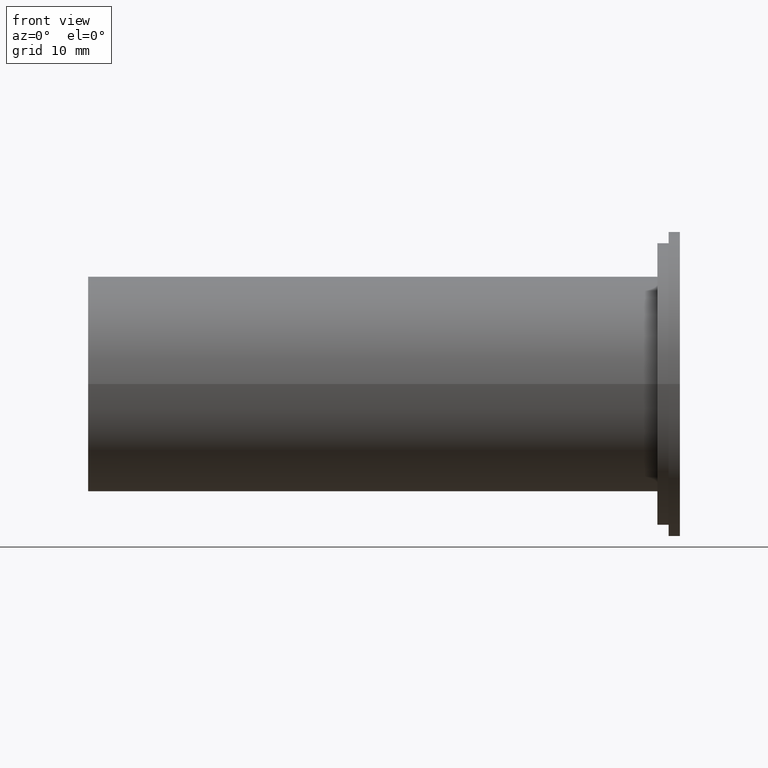
[diagram: clean part render]
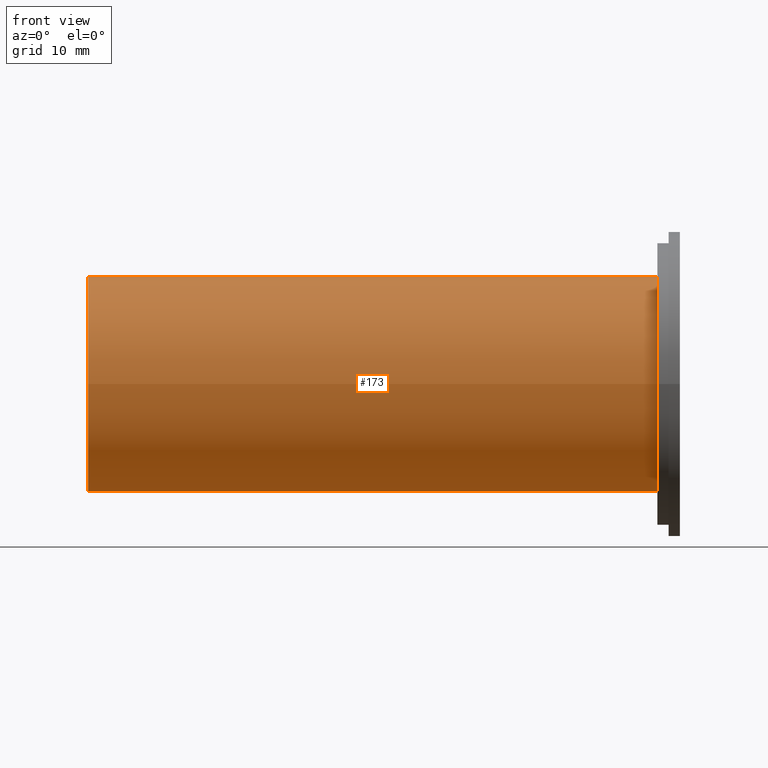
[diagram: same view with one face highlighted and labeled with its STEP entity id]
A machine part, front view. The second image highlights one B-rep face of the part: STEP entity #173.
In plain terms, the highlighted cylindrical surface (bore or boss wall) has radius 9.525 mm, axis along (1, 0, 0).
Its self-contained STEP definition (entity closure, byte-faithful):
#34=FACE_OUTER_BOUND('',#49,.T.);
#49=EDGE_LOOP('',(#148,#149,#150,#151));
#59=LINE('',#325,#67);
#67=VECTOR('',#276,9.525);
#79=CIRCLE('',#218,9.525);
#80=CIRCLE('',#220,9.525);
#92=VERTEX_POINT('',#320);
#93=VERTEX_POINT('',#323);
#111=EDGE_CURVE('',#92,#92,#79,.T.);
#112=EDGE_CURVE('',#93,#93,#80,.T.);
#113=EDGE_CURVE('',#93,#92,#59,.T.);
#148=ORIENTED_EDGE('',*,*,#112,.F.);
#149=ORIENTED_EDGE('',*,*,#113,.T.);
#150=ORIENTED_EDGE('',*,*,#111,.T.);
#151=ORIENTED_EDGE('',*,*,#113,.F.);
#162=CYLINDRICAL_SURFACE('',#219,9.525);
#173=ADVANCED_FACE('',(#34),#162,.T.);
#218=AXIS2_PLACEMENT_3D('',#321,#270,#271);
#219=AXIS2_PLACEMENT_3D('',#322,#272,#273);
#220=AXIS2_PLACEMENT_3D('',#324,#274,#275);
#270=DIRECTION('center_axis',(1.,0.,0.));
#271=DIRECTION('ref_axis',(0.,0.,-1.));
#272=DIRECTION('center_axis',(1.,0.,0.));
#273=DIRECTION('ref_axis',(0.,1.,0.));
#274=DIRECTION('center_axis',(1.,0.,0.));
#275=DIRECTION('ref_axis',(0.,0.,-1.));
#276=DIRECTION('',(-1.,0.,0.));
#320=CARTESIAN_POINT('',(-52.5,-9.525,-1.16647607618785E-15));
#321=CARTESIAN_POINT('Origin',(-52.5,0.,0.));
#322=CARTESIAN_POINT('Origin',(-27.25,0.,0.));
#323=CARTESIAN_POINT('',(-2.,-9.525,-1.16647607618785E-15));
#324=CARTESIAN_POINT('Origin',(-2.,0.,0.));
#325=CARTESIAN_POINT('',(-27.25,-9.525,-1.16647607618785E-15));